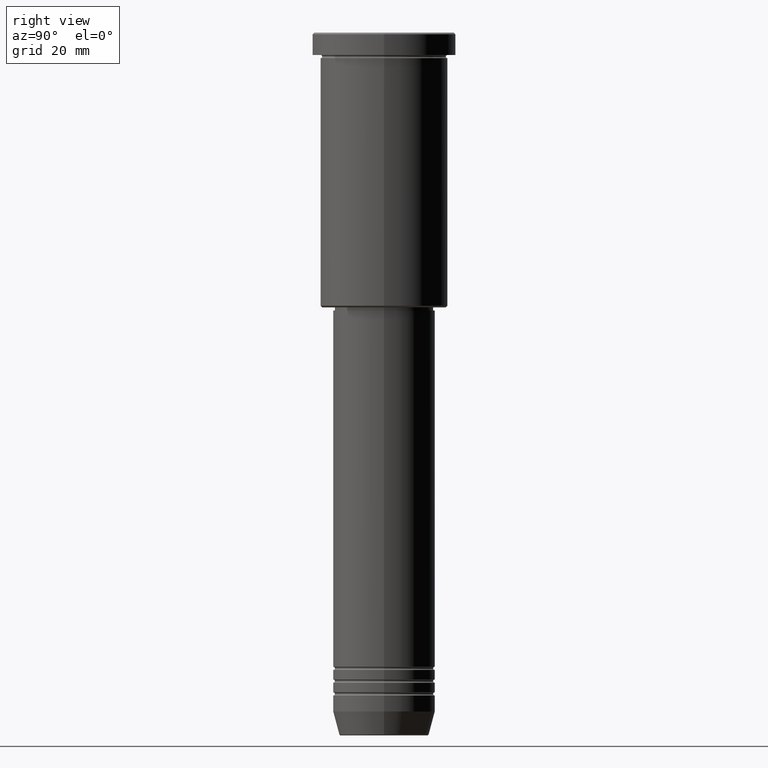
[diagram: clean part render]
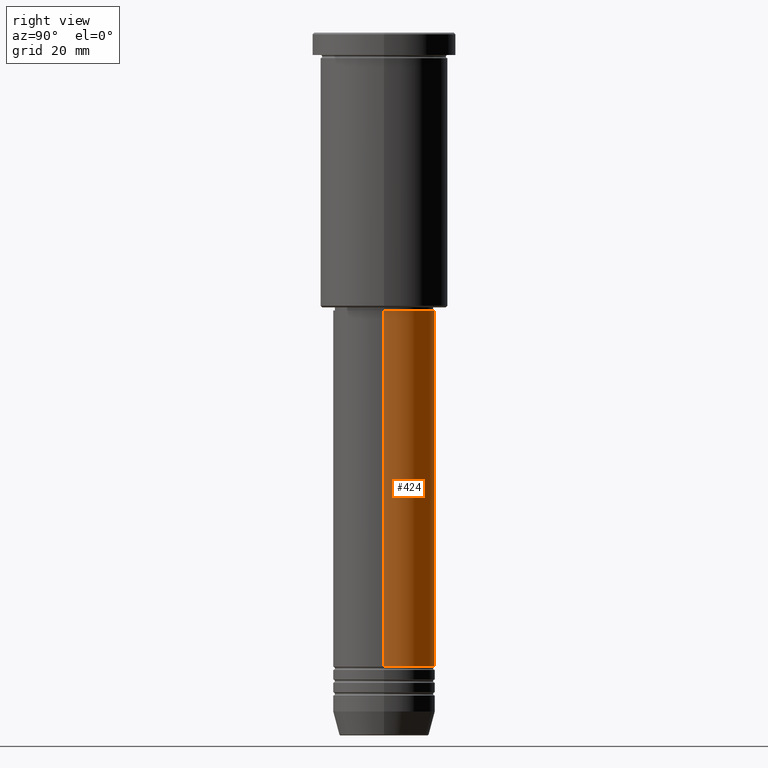
[diagram: same view with one face highlighted and labeled with its STEP entity id]
A machine part, right view. The second image highlights one B-rep face of the part: STEP entity #424.
In plain terms, the highlighted cylindrical surface (partial cylindrical patch) has radius 16 mm, axis along (-0, -0, 1).
Its self-contained STEP definition (entity closure, byte-faithful):
#1 = CARTESIAN_POINT ( 'NONE',  ( 16.00000000000000000, 0.000000000000000000, 0.000000000000000000 ) ) ;
#6 = CARTESIAN_POINT ( 'NONE',  ( 0.000000000000000000, 0.000000000000000000, -198.4999999999999716 ) ) ;
#38 = ORIENTED_EDGE ( 'NONE', *, *, #58, .F. ) ;
#58 = EDGE_CURVE ( 'NONE', #1114, #335, #188, .T. ) ;
#77 = ORIENTED_EDGE ( 'NONE', *, *, #954, .F. ) ;
#125 = ORIENTED_EDGE ( 'NONE', *, *, #796, .T. ) ;
#179 = EDGE_CURVE ( 'NONE', #1114, #951, #379, .T. ) ;
#188 = LINE ( 'NONE', #1, #1052 ) ;
#242 = VECTOR ( 'NONE', #1151, 1000.000000000000000 ) ;
#283 = DIRECTION ( 'NONE',  ( 1.000000000000000000, 0.000000000000000000, 0.000000000000000000 ) ) ;
#291 = CARTESIAN_POINT ( 'NONE',  ( -16.00000000000000000, 1.959434878635765131E-15, -198.4999999999999716 ) ) ;
#335 = VERTEX_POINT ( 'NONE', #922 ) ;
#352 = EDGE_LOOP ( 'NONE', ( #1130, #125, #77, #38 ) ) ;
#372 = DIRECTION ( 'NONE',  ( -0.000000000000000000, -0.000000000000000000, 1.000000000000000000 ) ) ;
#374 = DIRECTION ( 'NONE',  ( -0.000000000000000000, -0.000000000000000000, 1.000000000000000000 ) ) ;
#379 = CIRCLE ( 'NONE', #794, 16.00000000000000000 ) ;
#424 = ADVANCED_FACE ( 'NONE', ( #1163 ), #1054, .T. ) ;
#427 = VERTEX_POINT ( 'NONE', #902 ) ;
#522 = LINE ( 'NONE', #706, #242 ) ;
#645 = CIRCLE ( 'NONE', #680, 16.00000000000000000 ) ;
#680 = AXIS2_PLACEMENT_3D ( 'NONE', #1103, #372, #819 ) ;
#706 = CARTESIAN_POINT ( 'NONE',  ( -16.00000000000000000, 1.959434878635765131E-15, 0.000000000000000000 ) ) ;
#713 = CARTESIAN_POINT ( 'NONE',  ( 0.000000000000000000, 0.000000000000000000, 0.000000000000000000 ) ) ;
#794 = AXIS2_PLACEMENT_3D ( 'NONE', #6, #374, #283 ) ;
#796 = EDGE_CURVE ( 'NONE', #951, #427, #522, .T. ) ;
#815 = DIRECTION ( 'NONE',  ( -0.000000000000000000, -0.000000000000000000, 1.000000000000000000 ) ) ;
#819 = DIRECTION ( 'NONE',  ( 1.000000000000000000, 0.000000000000000000, 0.000000000000000000 ) ) ;
#902 = CARTESIAN_POINT ( 'NONE',  ( -16.00000000000000000, 1.959434878635765131E-15, -87.00000000000002842 ) ) ;
#922 = CARTESIAN_POINT ( 'NONE',  ( 16.00000000000000000, 0.000000000000000000, -87.00000000000002842 ) ) ;
#951 = VERTEX_POINT ( 'NONE', #291 ) ;
#954 = EDGE_CURVE ( 'NONE', #335, #427, #645, .T. ) ;
#963 = DIRECTION ( 'NONE',  ( -0.000000000000000000, -0.000000000000000000, 1.000000000000000000 ) ) ;
#1052 = VECTOR ( 'NONE', #815, 1000.000000000000000 ) ;
#1054 = CYLINDRICAL_SURFACE ( 'NONE', #1153, 16.00000000000000000 ) ;
#1067 = DIRECTION ( 'NONE',  ( 1.000000000000000000, 0.000000000000000000, 0.000000000000000000 ) ) ;
#1103 = CARTESIAN_POINT ( 'NONE',  ( 0.000000000000000000, 0.000000000000000000, -87.00000000000002842 ) ) ;
#1114 = VERTEX_POINT ( 'NONE', #1131 ) ;
#1130 = ORIENTED_EDGE ( 'NONE', *, *, #179, .T. ) ;
#1131 = CARTESIAN_POINT ( 'NONE',  ( 16.00000000000000000, 0.000000000000000000, -198.4999999999999716 ) ) ;
#1151 = DIRECTION ( 'NONE',  ( -0.000000000000000000, -0.000000000000000000, 1.000000000000000000 ) ) ;
#1153 = AXIS2_PLACEMENT_3D ( 'NONE', #713, #963, #1067 ) ;
#1163 = FACE_OUTER_BOUND ( 'NONE', #352, .T. ) ;